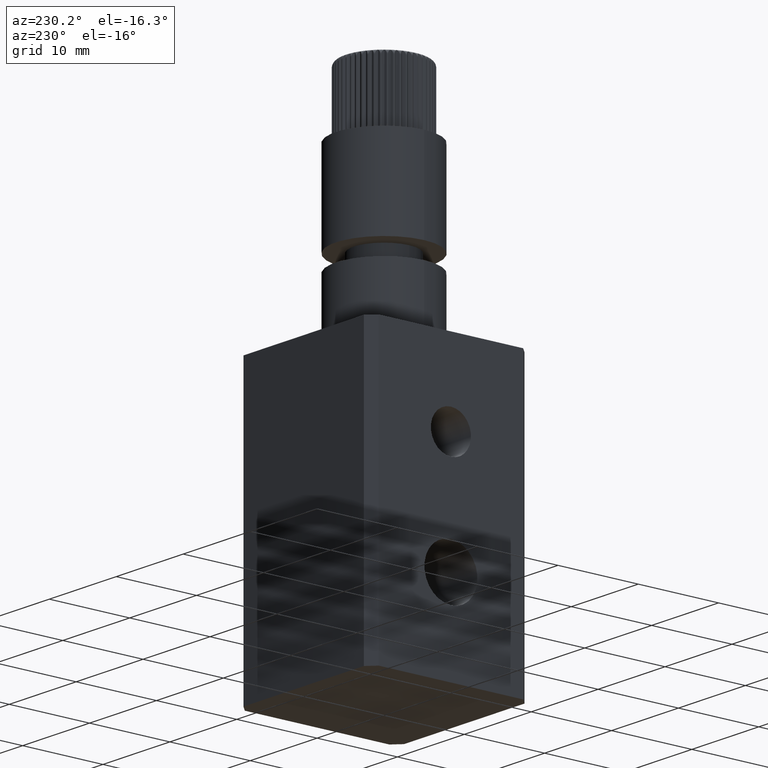
[diagram: clean part render]
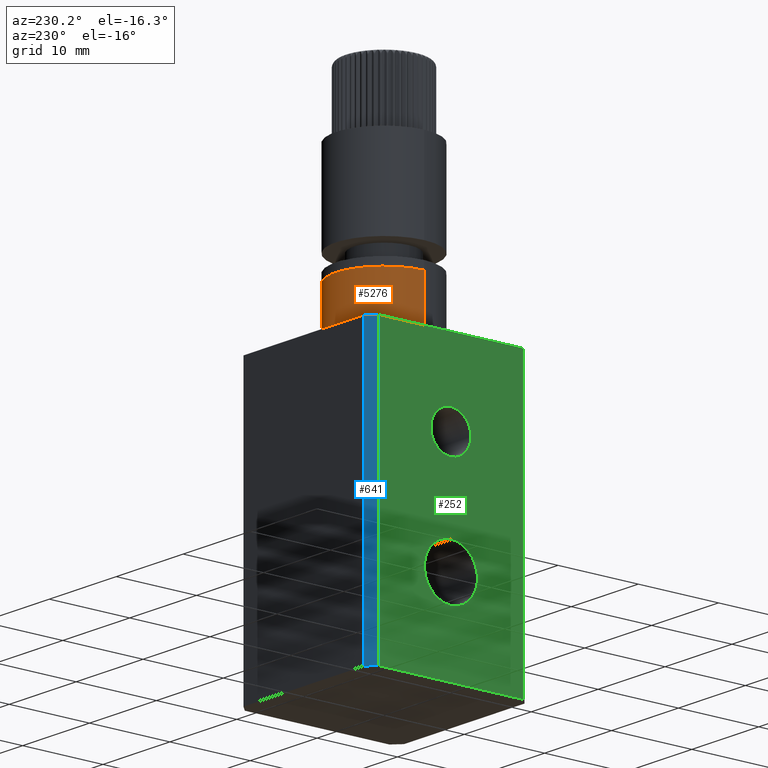
[diagram: same view with three faces highlighted in distinct colors, each labeled with its STEP entity id]
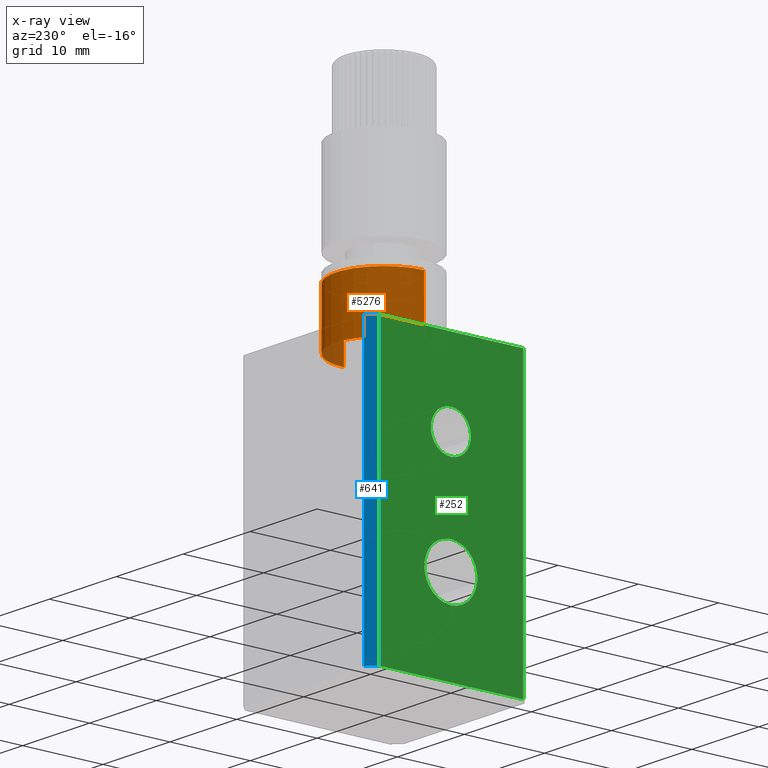
[diagram: x-ray of the same camera — body ghosted, the three highlighted faces saturated]
A machine part, auxiliary view with three faces highlighted in distinct colors.
The next image is the same camera in x-ray (body ghosted, the three faces saturated) — at least one of them is partly hidden behind the body in this view.
Their STEP definitions:

[orange] entity #5276 — the highlighted cylindrical surface (partial cylindrical patch) has radius 6 mm, axis along (-0, -0, -1).
#112 = EDGE_CURVE ( 'NONE', #3831, #2887, #9174, .T. ) ;
#478 = DIRECTION ( 'NONE',  ( 1.000000000000000000, 0.0000000000000000000, 0.0000000000000000000 ) ) ;
#795 = EDGE_LOOP ( 'NONE', ( #7122, #7557, #926, #3172 ) ) ;
#809 = AXIS2_PLACEMENT_3D ( 'NONE', #9817, #2524, #5753 ) ;
#926 = ORIENTED_EDGE ( 'NONE', *, *, #7118, .T. ) ;
#1052 = CARTESIAN_POINT ( 'NONE',  ( 6.000000000000000900, 7.347880794884120700E-016, 35.00000000000000000 ) ) ;
#1090 = CIRCLE ( 'NONE', #2014, 6.000000000000000900 ) ;
#1603 = CIRCLE ( 'NONE', #2446, 6.000000000000000900 ) ;
#1698 = VECTOR ( 'NONE', #2454, 1000.000000000000000 ) ;
#1748 = VERTEX_POINT ( 'NONE', #1052 ) ;
#1780 = CARTESIAN_POINT ( 'NONE',  ( -6.000000000000000900, 0.0000000000000000000, 42.00000000000000000 ) ) ;
#2014 = AXIS2_PLACEMENT_3D ( 'NONE', #4680, #3779, #5513 ) ;
#2446 = AXIS2_PLACEMENT_3D ( 'NONE', #3963, #9803, #478 ) ;
#2454 = DIRECTION ( 'NONE',  ( -0.0000000000000000000, -0.0000000000000000000, -1.000000000000000000 ) ) ;
#2524 = DIRECTION ( 'NONE',  ( -0.0000000000000000000, -0.0000000000000000000, -1.000000000000000000 ) ) ;
#2887 = VERTEX_POINT ( 'NONE', #7302 ) ;
#3172 = ORIENTED_EDGE ( 'NONE', *, *, #112, .F. ) ;
#3761 = VECTOR ( 'NONE', #6860, 1000.000000000000000 ) ;
#3779 = DIRECTION ( 'NONE',  ( -0.0000000000000000000, -0.0000000000000000000, 1.000000000000000000 ) ) ;
#3831 = VERTEX_POINT ( 'NONE', #1780 ) ;
#3837 = CARTESIAN_POINT ( 'NONE',  ( 6.000000000000000900, 7.347880794884120700E-016, 42.00000000000000000 ) ) ;
#3963 = CARTESIAN_POINT ( 'NONE',  ( 0.0000000000000000000, 0.0000000000000000000, 42.00000000000000000 ) ) ;
#4386 = CARTESIAN_POINT ( 'NONE',  ( -6.000000000000000900, 0.0000000000000000000, 42.00000000000000000 ) ) ;
#4680 = CARTESIAN_POINT ( 'NONE',  ( 0.0000000000000000000, 0.0000000000000000000, 35.00000000000000000 ) ) ;
#5109 = VERTEX_POINT ( 'NONE', #3837 ) ;
#5276 = ADVANCED_FACE ( 'NONE', ( #8868 ), #6614, .T. ) ;
#5513 = DIRECTION ( 'NONE',  ( -1.000000000000000000, 0.0000000000000000000, 0.0000000000000000000 ) ) ;
#5753 = DIRECTION ( 'NONE',  ( -1.000000000000000000, 0.0000000000000000000, 0.0000000000000000000 ) ) ;
#6614 = CYLINDRICAL_SURFACE ( 'NONE', #809, 6.000000000000000900 ) ;
#6860 = DIRECTION ( 'NONE',  ( -0.0000000000000000000, -0.0000000000000000000, -1.000000000000000000 ) ) ;
#7118 = EDGE_CURVE ( 'NONE', #1748, #2887, #1090, .T. ) ;
#7122 = ORIENTED_EDGE ( 'NONE', *, *, #8878, .F. ) ;
#7302 = CARTESIAN_POINT ( 'NONE',  ( -6.000000000000000900, 0.0000000000000000000, 35.00000000000000000 ) ) ;
#7471 = CARTESIAN_POINT ( 'NONE',  ( 6.000000000000000900, 7.347880794884120700E-016, 42.00000000000000000 ) ) ;
#7557 = ORIENTED_EDGE ( 'NONE', *, *, #10863, .T. ) ;
#7996 = LINE ( 'NONE', #7471, #1698 ) ;
#8868 = FACE_OUTER_BOUND ( 'NONE', #795, .T. ) ;
#8878 = EDGE_CURVE ( 'NONE', #5109, #3831, #1603, .T. ) ;
#9174 = LINE ( 'NONE', #4386, #3761 ) ;
#9803 = DIRECTION ( 'NONE',  ( 0.0000000000000000000, 0.0000000000000000000, 1.000000000000000000 ) ) ;
#9817 = CARTESIAN_POINT ( 'NONE',  ( 0.0000000000000000000, 0.0000000000000000000, 42.00000000000000000 ) ) ;
#10863 = EDGE_CURVE ( 'NONE', #5109, #1748, #7996, .T. ) ;

[blue] entity #641 — the highlighted planar face has unit normal (0.7071, -0.7071, 0).
#30 = CARTESIAN_POINT ( 'NONE',  ( -9.000000000000007100, 9.999999999999998200, 35.00000000000000000 ) ) ;
#213 = CARTESIAN_POINT ( 'NONE',  ( -9.000000000000007100, 9.999999999999998200, 0.0000000000000000000 ) ) ;
#247 = LINE ( 'NONE', #30, #4406 ) ;
#641 = ADVANCED_FACE ( 'NONE', ( #7573 ), #5619, .F. ) ;
#734 = VERTEX_POINT ( 'NONE', #5701 ) ;
#870 = ORIENTED_EDGE ( 'NONE', *, *, #7183, .F. ) ;
#920 = EDGE_CURVE ( 'NONE', #734, #4924, #247, .T. ) ;
#1236 = CARTESIAN_POINT ( 'NONE',  ( -10.00000000000000900, 9.000000000000001800, 0.0000000000000000000 ) ) ;
#1463 = DIRECTION ( 'NONE',  ( 0.7071067811865462400, -0.7071067811865489100, 0.0000000000000000000 ) ) ;
#2133 = LINE ( 'NONE', #2471, #8301 ) ;
#2314 = VECTOR ( 'NONE', #4983, 1000.000000000000000 ) ;
#2471 = CARTESIAN_POINT ( 'NONE',  ( -10.00000000000000900, 9.000000000000001800, 35.00000000000000000 ) ) ;
#2487 = ORIENTED_EDGE ( 'NONE', *, *, #4490, .T. ) ;
#2541 = EDGE_CURVE ( 'NONE', #4089, #4478, #5040, .T. ) ;
#3221 = DIRECTION ( 'NONE',  ( -0.7071067811865489100, -0.7071067811865462400, -0.0000000000000000000 ) ) ;
#3628 = CARTESIAN_POINT ( 'NONE',  ( -10.00000000000000900, 9.000000000000001800, 0.0000000000000000000 ) ) ;
#4089 = VERTEX_POINT ( 'NONE', #10858 ) ;
#4406 = VECTOR ( 'NONE', #5909, 1000.000000000000000 ) ;
#4478 = VERTEX_POINT ( 'NONE', #1236 ) ;
#4490 = EDGE_CURVE ( 'NONE', #4924, #4478, #6241, .T. ) ;
#4924 = VERTEX_POINT ( 'NONE', #213 ) ;
#4983 = DIRECTION ( 'NONE',  ( -0.0000000000000000000, -0.0000000000000000000, -1.000000000000000000 ) ) ;
#5040 = LINE ( 'NONE', #6769, #2314 ) ;
#5619 = PLANE ( 'NONE',  #9728 ) ;
#5701 = CARTESIAN_POINT ( 'NONE',  ( -9.000000000000007100, 9.999999999999998200, 35.00000000000000000 ) ) ;
#5909 = DIRECTION ( 'NONE',  ( -0.0000000000000000000, -0.0000000000000000000, -1.000000000000000000 ) ) ;
#6070 = ORIENTED_EDGE ( 'NONE', *, *, #2541, .F. ) ;
#6171 = ORIENTED_EDGE ( 'NONE', *, *, #920, .T. ) ;
#6241 = LINE ( 'NONE', #3628, #9547 ) ;
#6473 = DIRECTION ( 'NONE',  ( 0.7071067811865489100, 0.7071067811865462400, 0.0000000000000000000 ) ) ;
#6769 = CARTESIAN_POINT ( 'NONE',  ( -10.00000000000000900, 9.000000000000001800, 35.00000000000000000 ) ) ;
#6897 = EDGE_LOOP ( 'NONE', ( #2487, #6070, #870, #6171 ) ) ;
#7183 = EDGE_CURVE ( 'NONE', #734, #4089, #2133, .T. ) ;
#7573 = FACE_OUTER_BOUND ( 'NONE', #6897, .T. ) ;
#8104 = CARTESIAN_POINT ( 'NONE',  ( -10.00000000000000900, 9.000000000000001800, 35.00000000000000000 ) ) ;
#8301 = VECTOR ( 'NONE', #3221, 999.9999999999998900 ) ;
#9547 = VECTOR ( 'NONE', #9660, 999.9999999999998900 ) ;
#9660 = DIRECTION ( 'NONE',  ( -0.7071067811865489100, -0.7071067811865462400, -0.0000000000000000000 ) ) ;
#9728 = AXIS2_PLACEMENT_3D ( 'NONE', #8104, #1463, #6473 ) ;
#10858 = CARTESIAN_POINT ( 'NONE',  ( -10.00000000000000900, 9.000000000000001800, 35.00000000000000000 ) ) ;

[green] entity #252 — the highlighted planar face has unit normal (1, 0, -0).
#252 = ADVANCED_FACE ( 'NONE', ( #9972, #9304, #7057 ), #5304, .F. ) ;
#312 = CARTESIAN_POINT ( 'NONE',  ( -10.00000000000000900, 9.000000000000001800, 35.00000000000000000 ) ) ;
#813 = ORIENTED_EDGE ( 'NONE', *, *, #10711, .T. ) ;
#1015 = DIRECTION ( 'NONE',  ( -1.000000000000000000, -0.0000000000000000000, -0.0000000000000000000 ) ) ;
#1057 = AXIS2_PLACEMENT_3D ( 'NONE', #6239, #7936, #9447 ) ;
#1152 = DIRECTION ( 'NONE',  ( -9.637352644315595200E-017, 1.000000000000000000, 0.0000000000000000000 ) ) ;
#1173 = DIRECTION ( 'NONE',  ( 9.637352644315595200E-017, -1.000000000000000000, 0.0000000000000000000 ) ) ;
#1187 = ORIENTED_EDGE ( 'NONE', *, *, #8039, .F. ) ;
#1236 = CARTESIAN_POINT ( 'NONE',  ( -10.00000000000000900, 9.000000000000001800, 0.0000000000000000000 ) ) ;
#1343 = EDGE_CURVE ( 'NONE', #1973, #3033, #10366, .T. ) ;
#1705 = AXIS2_PLACEMENT_3D ( 'NONE', #312, #6163, #1152 ) ;
#1741 = CARTESIAN_POINT ( 'NONE',  ( -10.00000000000000900, 9.000000000000001800, 35.00000000000000000 ) ) ;
#1882 = VERTEX_POINT ( 'NONE', #8129 ) ;
#1901 = LINE ( 'NONE', #1741, #7258 ) ;
#1973 = VERTEX_POINT ( 'NONE', #7757 ) ;
#1975 = CARTESIAN_POINT ( 'NONE',  ( -10.00000000000000700, -8.999999999999998200, 35.00000000000000000 ) ) ;
#2054 = DIRECTION ( 'NONE',  ( 9.637352644315595200E-017, -1.000000000000000000, 0.0000000000000000000 ) ) ;
#2132 = CARTESIAN_POINT ( 'NONE',  ( -9.999999999999989300, 0.0000000000000000000, 11.00000000000000000 ) ) ;
#2314 = VECTOR ( 'NONE', #4983, 1000.000000000000000 ) ;
#2361 = AXIS2_PLACEMENT_3D ( 'NONE', #5746, #4989, #4121 ) ;
#2541 = EDGE_CURVE ( 'NONE', #4089, #4478, #5040, .T. ) ;
#2674 = LINE ( 'NONE', #4444, #10856 ) ;
#2705 = VERTEX_POINT ( 'NONE', #8880 ) ;
#3033 = VERTEX_POINT ( 'NONE', #5043 ) ;
#3405 = EDGE_CURVE ( 'NONE', #7523, #10453, #9398, .T. ) ;
#4089 = VERTEX_POINT ( 'NONE', #10858 ) ;
#4121 = DIRECTION ( 'NONE',  ( 0.0000000000000000000, 0.0000000000000000000, 1.000000000000000000 ) ) ;
#4168 = ORIENTED_EDGE ( 'NONE', *, *, #2541, .T. ) ;
#4342 = EDGE_LOOP ( 'NONE', ( #6991, #10712, #6106, #4168 ) ) ;
#4444 = CARTESIAN_POINT ( 'NONE',  ( -10.00000000000000900, 9.000000000000001800, 0.0000000000000000000 ) ) ;
#4452 = ORIENTED_EDGE ( 'NONE', *, *, #3405, .F. ) ;
#4478 = VERTEX_POINT ( 'NONE', #1236 ) ;
#4954 = AXIS2_PLACEMENT_3D ( 'NONE', #2132, #6352, #8009 ) ;
#4976 = CIRCLE ( 'NONE', #2361, 2.499999999999988500 ) ;
#4983 = DIRECTION ( 'NONE',  ( -0.0000000000000000000, -0.0000000000000000000, -1.000000000000000000 ) ) ;
#4989 = DIRECTION ( 'NONE',  ( -1.000000000000000000, -0.0000000000000000000, -0.0000000000000000000 ) ) ;
#5040 = LINE ( 'NONE', #6769, #2314 ) ;
#5043 = CARTESIAN_POINT ( 'NONE',  ( -10.00000000000000700, -8.999999999999998200, 0.0000000000000000000 ) ) ;
#5091 = CARTESIAN_POINT ( 'NONE',  ( -10.00000000000000900, -9.637352644315600700E-016, 25.00000000000000000 ) ) ;
#5134 = DIRECTION ( 'NONE',  ( 0.0000000000000000000, 0.0000000000000000000, 1.000000000000000000 ) ) ;
#5304 = PLANE ( 'NONE',  #1705 ) ;
#5385 = EDGE_CURVE ( 'NONE', #4089, #1973, #1901, .T. ) ;
#5746 = CARTESIAN_POINT ( 'NONE',  ( -10.00000000000000900, -9.637352644315600700E-016, 25.00000000000000000 ) ) ;
#5757 = CARTESIAN_POINT ( 'NONE',  ( -10.00000000000000900, -9.637352644315600700E-016, 27.49999999999998900 ) ) ;
#5852 = EDGE_CURVE ( 'NONE', #4478, #3033, #2674, .T. ) ;
#6106 = ORIENTED_EDGE ( 'NONE', *, *, #5385, .F. ) ;
#6163 = DIRECTION ( 'NONE',  ( 1.000000000000000000, 9.637352644315595200E-017, -0.0000000000000000000 ) ) ;
#6224 = EDGE_LOOP ( 'NONE', ( #1187, #4452 ) ) ;
#6239 = CARTESIAN_POINT ( 'NONE',  ( -9.999999999999989300, 0.0000000000000000000, 11.00000000000000000 ) ) ;
#6352 = DIRECTION ( 'NONE',  ( 1.000000000000000000, -0.0000000000000000000, -0.0000000000000000000 ) ) ;
#6768 = ORIENTED_EDGE ( 'NONE', *, *, #9933, .T. ) ;
#6769 = CARTESIAN_POINT ( 'NONE',  ( -10.00000000000000900, 9.000000000000001800, 35.00000000000000000 ) ) ;
#6934 = CIRCLE ( 'NONE', #4954, 3.300000000000005200 ) ;
#6955 = DIRECTION ( 'NONE',  ( -0.0000000000000000000, -0.0000000000000000000, -1.000000000000000000 ) ) ;
#6991 = ORIENTED_EDGE ( 'NONE', *, *, #5852, .T. ) ;
#7057 = FACE_OUTER_BOUND ( 'NONE', #4342, .T. ) ;
#7258 = VECTOR ( 'NONE', #2054, 1000.000000000000000 ) ;
#7523 = VERTEX_POINT ( 'NONE', #8791 ) ;
#7757 = CARTESIAN_POINT ( 'NONE',  ( -10.00000000000000700, -8.999999999999998200, 35.00000000000000000 ) ) ;
#7936 = DIRECTION ( 'NONE',  ( 1.000000000000000000, -0.0000000000000000000, -0.0000000000000000000 ) ) ;
#8009 = DIRECTION ( 'NONE',  ( 0.0000000000000000000, 0.0000000000000000000, -1.000000000000000000 ) ) ;
#8039 = EDGE_CURVE ( 'NONE', #10453, #7523, #4976, .T. ) ;
#8044 = AXIS2_PLACEMENT_3D ( 'NONE', #5091, #1015, #5134 ) ;
#8111 = VECTOR ( 'NONE', #6955, 1000.000000000000000 ) ;
#8129 = CARTESIAN_POINT ( 'NONE',  ( -9.999999999999989300, 0.0000000000000000000, 7.699999999999994000 ) ) ;
#8578 = EDGE_LOOP ( 'NONE', ( #6768, #813 ) ) ;
#8791 = CARTESIAN_POINT ( 'NONE',  ( -10.00000000000000900, -6.575735646447227900E-016, 22.50000000000001400 ) ) ;
#8880 = CARTESIAN_POINT ( 'NONE',  ( -9.999999999999989300, 4.041334437186271900E-016, 14.30000000000000400 ) ) ;
#9304 = FACE_BOUND ( 'NONE', #6224, .T. ) ;
#9398 = CIRCLE ( 'NONE', #8044, 2.499999999999988500 ) ;
#9447 = DIRECTION ( 'NONE',  ( 0.0000000000000000000, 0.0000000000000000000, -1.000000000000000000 ) ) ;
#9933 = EDGE_CURVE ( 'NONE', #1882, #2705, #10114, .T. ) ;
#9972 = FACE_BOUND ( 'NONE', #8578, .T. ) ;
#10114 = CIRCLE ( 'NONE', #1057, 3.300000000000005200 ) ;
#10366 = LINE ( 'NONE', #1975, #8111 ) ;
#10453 = VERTEX_POINT ( 'NONE', #5757 ) ;
#10711 = EDGE_CURVE ( 'NONE', #2705, #1882, #6934, .T. ) ;
#10712 = ORIENTED_EDGE ( 'NONE', *, *, #1343, .F. ) ;
#10856 = VECTOR ( 'NONE', #1173, 1000.000000000000000 ) ;
#10858 = CARTESIAN_POINT ( 'NONE',  ( -10.00000000000000900, 9.000000000000001800, 35.00000000000000000 ) ) ;